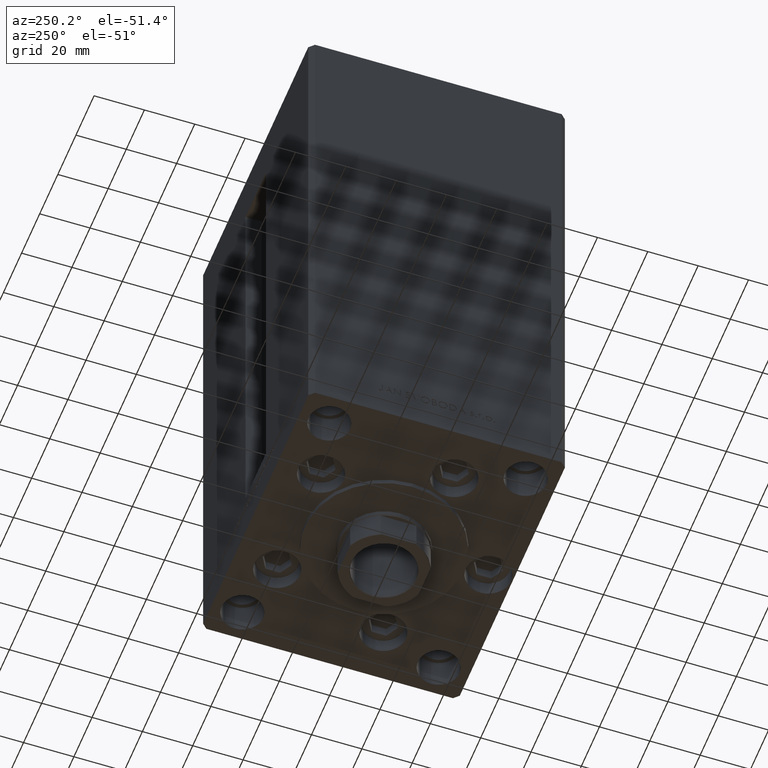
[diagram: clean part render]
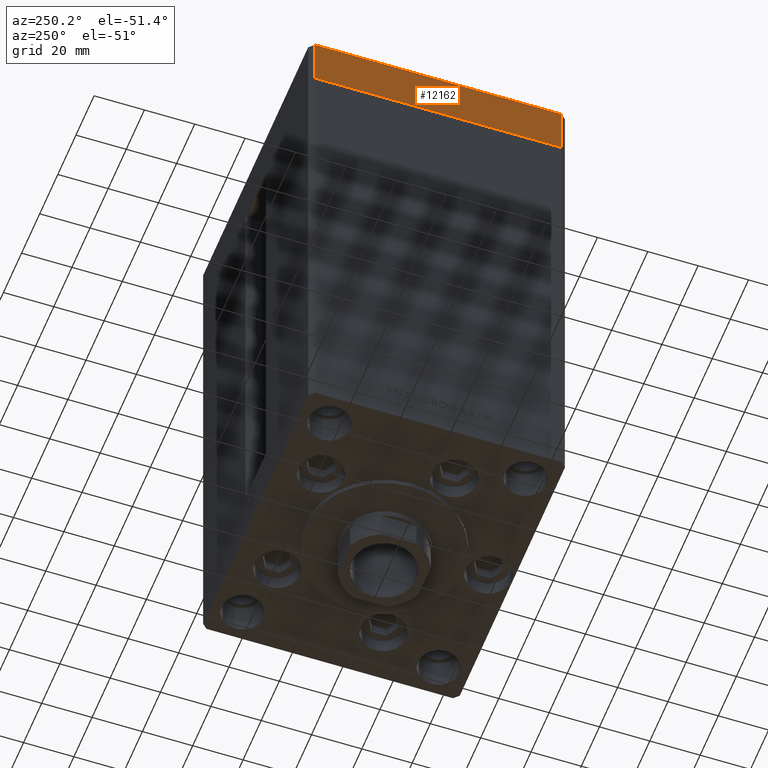
[diagram: same view with one face highlighted and labeled with its STEP entity id]
A machine part, auxiliary view. The second image highlights one B-rep face of the part: STEP entity #12162.
In plain terms, the highlighted planar face has unit normal (-1, 0, 0).
Its self-contained STEP definition (entity closure, byte-faithful):
#403 = CARTESIAN_POINT ( 'NONE',  ( -60.00000000000000000, 48.99999999999995737, -20.00000000000000000 ) ) ;
#1547 = DIRECTION ( 'NONE',  ( 0.000000000000000000, 0.000000000000000000, 1.000000000000000000 ) ) ;
#4095 = CARTESIAN_POINT ( 'NONE',  ( -60.00000000000000000, -49.00000000000000000, -20.00000000000000000 ) ) ;
#4531 = VECTOR ( 'NONE', #16605, 1000.000000000000000 ) ;
#5699 = EDGE_CURVE ( 'NONE', #8447, #38296, #16227, .T. ) ;
#8140 = CARTESIAN_POINT ( 'NONE',  ( -60.00000000000000000, 48.99999999999995737, 0.000000000000000000 ) ) ;
#8447 = VERTEX_POINT ( 'NONE', #10265 ) ;
#8979 = FACE_OUTER_BOUND ( 'NONE', #25717, .T. ) ;
#10265 = CARTESIAN_POINT ( 'NONE',  ( -60.00000000000000000, 48.99999999999995737, -20.00000000000000000 ) ) ;
#11319 = VERTEX_POINT ( 'NONE', #18162 ) ;
#12162 = ADVANCED_FACE ( 'NONE', ( #8979 ), #12460, .T. ) ;
#12460 = PLANE ( 'NONE',  #24808 ) ;
#14313 = VECTOR ( 'NONE', #45397, 1000.000000000000000 ) ;
#16227 = LINE ( 'NONE', #20445, #48381 ) ;
#16605 = DIRECTION ( 'NONE',  ( 0.000000000000000000, 0.000000000000000000, 1.000000000000000000 ) ) ;
#18162 = CARTESIAN_POINT ( 'NONE',  ( -60.00000000000000000, -49.00000000000000000, 0.000000000000000000 ) ) ;
#20415 = DIRECTION ( 'NONE',  ( 0.000000000000000000, 0.000000000000000000, 1.000000000000000000 ) ) ;
#20445 = CARTESIAN_POINT ( 'NONE',  ( -60.00000000000000000, 48.99999999999995737, -20.00000000000000000 ) ) ;
#20469 = ORIENTED_EDGE ( 'NONE', *, *, #26113, .T. ) ;
#20753 = VERTEX_POINT ( 'NONE', #4095 ) ;
#22741 = CARTESIAN_POINT ( 'NONE',  ( -60.00000000000000000, 48.99999999999995737, 0.000000000000000000 ) ) ;
#24808 = AXIS2_PLACEMENT_3D ( 'NONE', #39287, #39042, #20415 ) ;
#25717 = EDGE_LOOP ( 'NONE', ( #32718, #33177, #20469, #45825 ) ) ;
#26113 = EDGE_CURVE ( 'NONE', #8447, #20753, #45888, .T. ) ;
#26290 = DIRECTION ( 'NONE',  ( 0.000000000000000000, -1.000000000000000000, 0.000000000000000000 ) ) ;
#32718 = ORIENTED_EDGE ( 'NONE', *, *, #46879, .F. ) ;
#33040 = VECTOR ( 'NONE', #26290, 1000.000000000000000 ) ;
#33177 = ORIENTED_EDGE ( 'NONE', *, *, #5699, .F. ) ;
#35475 = LINE ( 'NONE', #43422, #4531 ) ;
#37108 = EDGE_CURVE ( 'NONE', #20753, #11319, #35475, .T. ) ;
#38296 = VERTEX_POINT ( 'NONE', #22741 ) ;
#39042 = DIRECTION ( 'NONE',  ( -1.000000000000000000, 0.000000000000000000, 0.000000000000000000 ) ) ;
#39287 = CARTESIAN_POINT ( 'NONE',  ( -60.00000000000000000, 48.99999999999995737, -20.00000000000000000 ) ) ;
#41669 = LINE ( 'NONE', #8140, #14313 ) ;
#43422 = CARTESIAN_POINT ( 'NONE',  ( -60.00000000000000000, -49.00000000000000000, -20.00000000000000000 ) ) ;
#45397 = DIRECTION ( 'NONE',  ( 0.000000000000000000, -1.000000000000000000, 0.000000000000000000 ) ) ;
#45825 = ORIENTED_EDGE ( 'NONE', *, *, #37108, .T. ) ;
#45888 = LINE ( 'NONE', #403, #33040 ) ;
#46879 = EDGE_CURVE ( 'NONE', #38296, #11319, #41669, .T. ) ;
#48381 = VECTOR ( 'NONE', #1547, 1000.000000000000000 ) ;